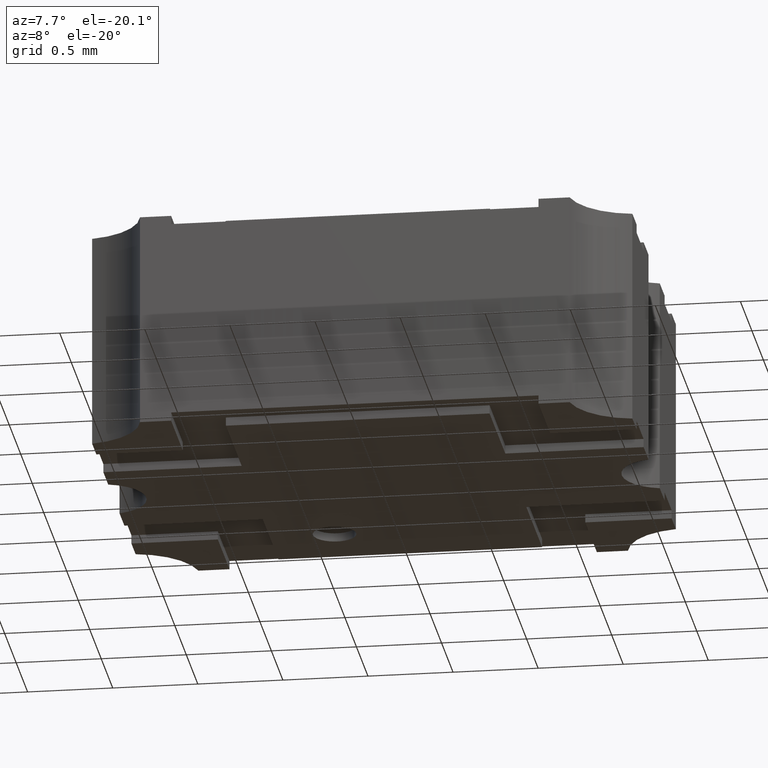
[diagram: clean part render]
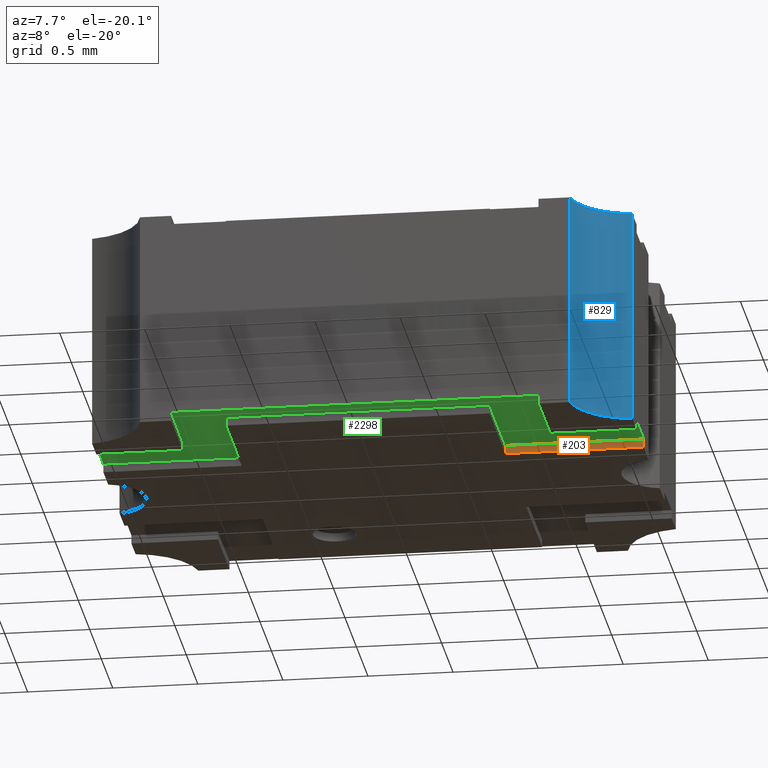
[diagram: same view with three faces highlighted in distinct colors, each labeled with its STEP entity id]
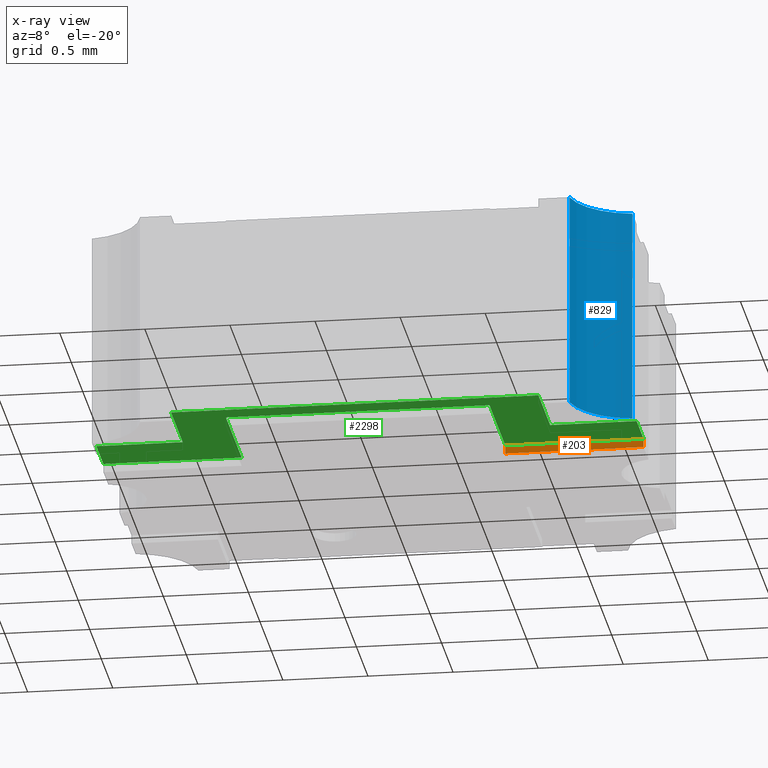
[diagram: x-ray of the same camera — body ghosted, the three highlighted faces saturated]
A machine part, auxiliary view with three faces highlighted in distinct colors.
The next image is the same camera in x-ray (body ghosted, the three faces saturated) — at least one of them is partly hidden behind the body in this view.
Their STEP definitions:

[orange] entity #203 — the highlighted planar face has unit normal (0.0001, -1, 0).
#30 = LINE ( 'NONE', #781, #1352 ) ;
#44 = EDGE_CURVE ( 'NONE', #238, #1852, #434, .T. ) ;
#50 = CARTESIAN_POINT ( 'NONE',  ( 0.03049999995082541826, -0.01799419436171988823, 0.002000000000000000042 ) ) ;
#197 = DIRECTION ( 'NONE',  ( 0.000000000000000000, 0.000000000000000000, -1.000000000000000000 ) ) ;
#203 = ADVANCED_FACE ( 'NONE', ( #358 ), #2021, .T. ) ;
#238 = VERTEX_POINT ( 'NONE', #958 ) ;
#263 = CARTESIAN_POINT ( 'NONE',  ( 0.03049999995082541826, -0.01799419436171988823, 0.002000000000000000042 ) ) ;
#281 = AXIS2_PLACEMENT_3D ( 'NONE', #2436, #2066, #742 ) ;
#336 = VERTEX_POINT ( 'NONE', #1307 ) ;
#341 = ORIENTED_EDGE ( 'NONE', *, *, #783, .F. ) ;
#358 = FACE_OUTER_BOUND ( 'NONE', #1867, .T. ) ;
#363 = ORIENTED_EDGE ( 'NONE', *, *, #2068, .T. ) ;
#434 = LINE ( 'NONE', #50, #560 ) ;
#560 = VECTOR ( 'NONE', #971, 39.37007874015748854 ) ;
#733 = LINE ( 'NONE', #937, #1522 ) ;
#742 = DIRECTION ( 'NONE',  ( 0.9999999972869166864, 7.366251766461968042E-05, 0.000000000000000000 ) ) ;
#768 = DIRECTION ( 'NONE',  ( -0.9999999972869166864, -7.366251766461968042E-05, -0.000000000000000000 ) ) ;
#779 = VECTOR ( 'NONE', #197, 39.37007874015748143 ) ;
#781 = CARTESIAN_POINT ( 'NONE',  ( 0.03049999995082541826, -0.01799419436171988823, 0.000000000000000000 ) ) ;
#783 = EDGE_CURVE ( 'NONE', #1264, #336, #30, .T. ) ;
#895 = ORIENTED_EDGE ( 'NONE', *, *, #44, .T. ) ;
#937 = CARTESIAN_POINT ( 'NONE',  ( 0.03049999995082541826, -0.01799419436171988823, 0.002000000000000000042 ) ) ;
#958 = CARTESIAN_POINT ( 'NONE',  ( 0.06249999990211729806, -0.01799183716115181422, 0.002000000000000000042 ) ) ;
#971 = DIRECTION ( 'NONE',  ( -0.9999999972869166864, -7.366251766461968042E-05, -0.000000000000000000 ) ) ;
#992 = EDGE_CURVE ( 'NONE', #238, #1264, #2114, .T. ) ;
#1103 = ORIENTED_EDGE ( 'NONE', *, *, #992, .F. ) ;
#1264 = VERTEX_POINT ( 'NONE', #1442 ) ;
#1307 = CARTESIAN_POINT ( 'NONE',  ( 0.03049999995082541826, -0.01799419436171988823, 0.000000000000000000 ) ) ;
#1317 = DIRECTION ( 'NONE',  ( 0.000000000000000000, 0.000000000000000000, -1.000000000000000000 ) ) ;
#1331 = CARTESIAN_POINT ( 'NONE',  ( 0.06249999990211729806, -0.01799183716115181422, 0.002000000000000000042 ) ) ;
#1352 = VECTOR ( 'NONE', #768, 39.37007874015748854 ) ;
#1442 = CARTESIAN_POINT ( 'NONE',  ( 0.06249999990211729806, -0.01799183716115181422, 0.000000000000000000 ) ) ;
#1522 = VECTOR ( 'NONE', #1317, 39.37007874015748143 ) ;
#1852 = VERTEX_POINT ( 'NONE', #263 ) ;
#1867 = EDGE_LOOP ( 'NONE', ( #341, #1103, #895, #363 ) ) ;
#2021 = PLANE ( 'NONE',  #281 ) ;
#2066 = DIRECTION ( 'NONE',  ( 7.366251766461969397E-05, -0.9999999972869167975, 0.000000000000000000 ) ) ;
#2068 = EDGE_CURVE ( 'NONE', #1852, #336, #733, .T. ) ;
#2114 = LINE ( 'NONE', #1331, #779 ) ;
#2436 = CARTESIAN_POINT ( 'NONE',  ( 0.03049999995082541826, -0.01799419436171988823, 0.002000000000000000042 ) ) ;

[blue] entity #829 — the highlighted cylindrical surface (partial cylindrical patch) has radius 0.3937 mm, axis along (-0, -0, -1).
#6 = DIRECTION ( 'NONE',  ( -0.000000000000000000, -0.000000000000000000, -1.000000000000000000 ) ) ;
#46 = EDGE_CURVE ( 'NONE', #901, #578, #1184, .T. ) ;
#119 = VECTOR ( 'NONE', #443, 39.37007874015748143 ) ;
#226 = CARTESIAN_POINT ( 'NONE',  ( 0.04970294146126963408, -0.04999999999976122156, 0.04999999999999999584 ) ) ;
#262 = CYLINDRICAL_SURFACE ( 'NONE', #542, 0.01550000000000002938 ) ;
#268 = VERTEX_POINT ( 'NONE', #1164 ) ;
#296 = DIRECTION ( 'NONE',  ( -0.000000000000000000, -0.000000000000000000, -1.000000000000000000 ) ) ;
#303 = CIRCLE ( 'NONE', #390, 0.01550000000000002938 ) ;
#390 = AXIS2_PLACEMENT_3D ( 'NONE', #1406, #296, #1007 ) ;
#414 = CARTESIAN_POINT ( 'NONE',  ( 0.06250000000204802841, -0.03720294145898288274, 0.002000000000000000042 ) ) ;
#443 = DIRECTION ( 'NONE',  ( -0.000000000000000000, -0.000000000000000000, -1.000000000000000000 ) ) ;
#499 = AXIS2_PLACEMENT_3D ( 'NONE', #778, #1537, #961 ) ;
#542 = AXIS2_PLACEMENT_3D ( 'NONE', #815, #2152, #1193 ) ;
#578 = VERTEX_POINT ( 'NONE', #1816 ) ;
#630 = CARTESIAN_POINT ( 'NONE',  ( 0.04970294146126963408, -0.04999999999976122156, 0.002000000000000000042 ) ) ;
#715 = ORIENTED_EDGE ( 'NONE', *, *, #1059, .T. ) ;
#717 = FACE_OUTER_BOUND ( 'NONE', #1236, .T. ) ;
#756 = VERTEX_POINT ( 'NONE', #950 ) ;
#778 = CARTESIAN_POINT ( 'NONE',  ( 0.06500000000204800288, -0.05249999999976126541, 0.04999999999999999584 ) ) ;
#815 = CARTESIAN_POINT ( 'NONE',  ( 0.06500000000204800288, -0.05249999999976126541, 0.002000000000000000042 ) ) ;
#829 = ADVANCED_FACE ( 'NONE', ( #717 ), #262, .F. ) ;
#879 = ORIENTED_EDGE ( 'NONE', *, *, #1315, .T. ) ;
#901 = VERTEX_POINT ( 'NONE', #226 ) ;
#950 = CARTESIAN_POINT ( 'NONE',  ( 0.06250000000204802841, -0.03720294145898288274, 0.000000000000000000 ) ) ;
#961 = DIRECTION ( 'NONE',  ( 1.000000000000000000, 0.000000000000000000, 0.000000000000000000 ) ) ;
#1007 = DIRECTION ( 'NONE',  ( 1.000000000000000000, 0.000000000000000000, 0.000000000000000000 ) ) ;
#1059 = EDGE_CURVE ( 'NONE', #578, #756, #303, .T. ) ;
#1164 = CARTESIAN_POINT ( 'NONE',  ( 0.06250000000204802841, -0.03720294145898288274, 0.04999999999999999584 ) ) ;
#1184 = LINE ( 'NONE', #630, #119 ) ;
#1193 = DIRECTION ( 'NONE',  ( -1.000000000000000000, 0.000000000000000000, 0.000000000000000000 ) ) ;
#1236 = EDGE_LOOP ( 'NONE', ( #715, #1509, #879, #2324 ) ) ;
#1315 = EDGE_CURVE ( 'NONE', #268, #901, #1570, .T. ) ;
#1401 = EDGE_CURVE ( 'NONE', #268, #756, #1696, .T. ) ;
#1406 = CARTESIAN_POINT ( 'NONE',  ( 0.06500000000204800288, -0.05249999999976126541, 0.000000000000000000 ) ) ;
#1509 = ORIENTED_EDGE ( 'NONE', *, *, #1401, .F. ) ;
#1537 = DIRECTION ( 'NONE',  ( 0.000000000000000000, 0.000000000000000000, 1.000000000000000000 ) ) ;
#1570 = CIRCLE ( 'NONE', #499, 0.01550000000000002938 ) ;
#1696 = LINE ( 'NONE', #414, #1965 ) ;
#1816 = CARTESIAN_POINT ( 'NONE',  ( 0.04970294146126963408, -0.04999999999976122156, 0.000000000000000000 ) ) ;
#1965 = VECTOR ( 'NONE', #6, 39.37007874015748143 ) ;
#2152 = DIRECTION ( 'NONE',  ( -0.000000000000000000, -0.000000000000000000, -1.000000000000000000 ) ) ;
#2324 = ORIENTED_EDGE ( 'NONE', *, *, #46, .T. ) ;

[green] entity #2298 — the highlighted planar face has unit normal (0, 0, -1).
#44 = EDGE_CURVE ( 'NONE', #238, #1852, #434, .T. ) ;
#50 = CARTESIAN_POINT ( 'NONE',  ( 0.03049999995082541826, -0.01799419436171988823, 0.002000000000000000042 ) ) ;
#56 = DIRECTION ( 'NONE',  ( 0.000000000000000000, 0.000000000000000000, -1.000000000000000000 ) ) ;
#88 = VERTEX_POINT ( 'NONE', #1256 ) ;
#108 = LINE ( 'NONE', #849, #842 ) ;
#131 = ORIENTED_EDGE ( 'NONE', *, *, #2203, .F. ) ;
#144 = VERTEX_POINT ( 'NONE', #2421 ) ;
#152 = VECTOR ( 'NONE', #836, 39.37007874015748143 ) ;
#215 = VERTEX_POINT ( 'NONE', #2253 ) ;
#228 = ORIENTED_EDGE ( 'NONE', *, *, #1705, .F. ) ;
#238 = VERTEX_POINT ( 'NONE', #958 ) ;
#255 = EDGE_CURVE ( 'NONE', #1852, #1316, #2119, .T. ) ;
#263 = CARTESIAN_POINT ( 'NONE',  ( 0.03049999995082541826, -0.01799419436171988823, 0.002000000000000000042 ) ) ;
#282 = CARTESIAN_POINT ( 'NONE',  ( -0.03050000004466257505, -0.04499419436170671444, 0.002000000000000000042 ) ) ;
#320 = DIRECTION ( 'NONE',  ( -1.000000000000000000, -0.000000000000000000, -0.000000000000000000 ) ) ;
#430 = FACE_OUTER_BOUND ( 'NONE', #1671, .T. ) ;
#432 = DIRECTION ( 'NONE',  ( -0.000000000000000000, 1.000000000000000000, -0.000000000000000000 ) ) ;
#434 = LINE ( 'NONE', #50, #560 ) ;
#439 = VECTOR ( 'NONE', #776, 39.37007874015748143 ) ;
#440 = LINE ( 'NONE', #1191, #2272 ) ;
#462 = CARTESIAN_POINT ( 'NONE',  ( 0.04249999990540798134, -0.04999999998177342975, 0.002000000000000000042 ) ) ;
#480 = LINE ( 'NONE', #2159, #152 ) ;
#520 = CARTESIAN_POINT ( 'NONE',  ( -0.04249999999469766809, -0.02999419436172034992, 0.002000000000000000042 ) ) ;
#560 = VECTOR ( 'NONE', #971, 39.37007874015748854 ) ;
#592 = EDGE_CURVE ( 'NONE', #1316, #1942, #705, .T. ) ;
#604 = ORIENTED_EDGE ( 'NONE', *, *, #1014, .F. ) ;
#619 = LINE ( 'NONE', #627, #1125 ) ;
#627 = CARTESIAN_POINT ( 'NONE',  ( 0.04249999990540798134, -0.04999999998177342975, 0.002000000000000000042 ) ) ;
#632 = DIRECTION ( 'NONE',  ( -0.000000000000000000, -1.000000000000000000, -0.000000000000000000 ) ) ;
#644 = ORIENTED_EDGE ( 'NONE', *, *, #1073, .F. ) ;
#682 = VECTOR ( 'NONE', #723, 39.37007874015748143 ) ;
#703 = AXIS2_PLACEMENT_3D ( 'NONE', #1749, #56, #802 ) ;
#705 = LINE ( 'NONE', #2000, #1106 ) ;
#713 = CARTESIAN_POINT ( 'NONE',  ( -0.06250000000204736228, -0.01799200798786280975, 0.002000000000000000042 ) ) ;
#723 = DIRECTION ( 'NONE',  ( 1.000000000000000000, 2.134256245401363435E-16, 0.000000000000000000 ) ) ;
#731 = VERTEX_POINT ( 'NONE', #2294 ) ;
#732 = LINE ( 'NONE', #520, #1744 ) ;
#766 = CARTESIAN_POINT ( 'NONE',  ( 0.03049999995082541826, -0.04499419436170671444, 0.002000000000000000042 ) ) ;
#776 = DIRECTION ( 'NONE',  ( -0.000000000000000000, -1.000000000000000000, -0.000000000000000000 ) ) ;
#802 = DIRECTION ( 'NONE',  ( -1.000000000000000000, 0.000000000000000000, -0.000000000000000000 ) ) ;
#804 = VECTOR ( 'NONE', #432, 39.37007874015748143 ) ;
#817 = EDGE_CURVE ( 'NONE', #88, #215, #732, .T. ) ;
#833 = CARTESIAN_POINT ( 'NONE',  ( -0.06250000000204736228, -0.02999419436172034992, 0.002000000000000000042 ) ) ;
#836 = DIRECTION ( 'NONE',  ( 1.000000000000000000, 2.008711762407946178E-16, -0.000000000000000000 ) ) ;
#842 = VECTOR ( 'NONE', #2327, 39.37007874015748143 ) ;
#849 = CARTESIAN_POINT ( 'NONE',  ( 0.06249999990211729806, -0.01799183716115181422, 0.002000000000000000042 ) ) ;
#958 = CARTESIAN_POINT ( 'NONE',  ( 0.06249999990211729806, -0.01799183716115181422, 0.002000000000000000042 ) ) ;
#971 = DIRECTION ( 'NONE',  ( -0.9999999972869166864, -7.366251766461968042E-05, -0.000000000000000000 ) ) ;
#1014 = EDGE_CURVE ( 'NONE', #215, #2007, #480, .T. ) ;
#1015 = LINE ( 'NONE', #833, #1641 ) ;
#1073 = EDGE_CURVE ( 'NONE', #1290, #238, #108, .T. ) ;
#1106 = VECTOR ( 'NONE', #320, 39.37007874015748143 ) ;
#1125 = VECTOR ( 'NONE', #1374, 39.37007874015748143 ) ;
#1180 = PLANE ( 'NONE',  #703 ) ;
#1191 = CARTESIAN_POINT ( 'NONE',  ( -0.06250000000204736228, -0.02999419436172034992, 0.002000000000000000042 ) ) ;
#1215 = EDGE_CURVE ( 'NONE', #144, #2124, #1471, .T. ) ;
#1256 = CARTESIAN_POINT ( 'NONE',  ( -0.04249999999469766809, -0.02999419436172034992, 0.002000000000000000042 ) ) ;
#1265 = ORIENTED_EDGE ( 'NONE', *, *, #44, .F. ) ;
#1270 = CARTESIAN_POINT ( 'NONE',  ( 0.06249999990211729806, -0.02999422734346567088, 0.002000000000000000042 ) ) ;
#1273 = DIRECTION ( 'NONE',  ( 0.000000000000000000, -1.000000000000000000, 0.000000000000000000 ) ) ;
#1290 = VERTEX_POINT ( 'NONE', #1270 ) ;
#1310 = CARTESIAN_POINT ( 'NONE',  ( -0.03050000004466257505, -0.01799419436171990558, 0.002000000000000000042 ) ) ;
#1316 = VERTEX_POINT ( 'NONE', #766 ) ;
#1374 = DIRECTION ( 'NONE',  ( 0.000000000000000000, 1.000000000000000000, 0.000000000000000000 ) ) ;
#1466 = VERTEX_POINT ( 'NONE', #1963 ) ;
#1471 = LINE ( 'NONE', #713, #1691 ) ;
#1474 = EDGE_CURVE ( 'NONE', #2124, #731, #1015, .T. ) ;
#1488 = ORIENTED_EDGE ( 'NONE', *, *, #817, .F. ) ;
#1519 = ORIENTED_EDGE ( 'NONE', *, *, #1789, .F. ) ;
#1624 = LINE ( 'NONE', #2198, #682 ) ;
#1641 = VECTOR ( 'NONE', #632, 39.37007874015748143 ) ;
#1671 = EDGE_LOOP ( 'NONE', ( #2430, #2004, #1519, #2365, #2415, #1265, #644, #228, #1893, #604, #1488, #131 ) ) ;
#1691 = VECTOR ( 'NONE', #2225, 39.37007874015748143 ) ;
#1705 = EDGE_CURVE ( 'NONE', #1466, #1290, #1624, .T. ) ;
#1715 = DIRECTION ( 'NONE',  ( 1.000000000000000000, 0.000000000000000000, 0.000000000000000000 ) ) ;
#1719 = CARTESIAN_POINT ( 'NONE',  ( 0.03049999995082541826, -0.04499419436170671444, 0.002000000000000000042 ) ) ;
#1744 = VECTOR ( 'NONE', #1273, 39.37007874015748143 ) ;
#1749 = CARTESIAN_POINT ( 'NONE',  ( 0.000000000000000000, 0.000000000000000000, 0.002000000000000000042 ) ) ;
#1765 = EDGE_CURVE ( 'NONE', #2007, #1466, #619, .T. ) ;
#1789 = EDGE_CURVE ( 'NONE', #1942, #144, #2263, .T. ) ;
#1852 = VERTEX_POINT ( 'NONE', #263 ) ;
#1893 = ORIENTED_EDGE ( 'NONE', *, *, #1765, .F. ) ;
#1942 = VERTEX_POINT ( 'NONE', #282 ) ;
#1963 = CARTESIAN_POINT ( 'NONE',  ( 0.04249999990540798134, -0.02999422734346567782, 0.002000000000000000042 ) ) ;
#2000 = CARTESIAN_POINT ( 'NONE',  ( -0.03050000004466257505, -0.04499419436170671444, 0.002000000000000000042 ) ) ;
#2004 = ORIENTED_EDGE ( 'NONE', *, *, #1215, .F. ) ;
#2007 = VERTEX_POINT ( 'NONE', #462 ) ;
#2119 = LINE ( 'NONE', #1719, #439 ) ;
#2124 = VERTEX_POINT ( 'NONE', #2413 ) ;
#2159 = CARTESIAN_POINT ( 'NONE',  ( 0.04249999990540798134, -0.04999999998177342975, 0.002000000000000000042 ) ) ;
#2198 = CARTESIAN_POINT ( 'NONE',  ( 0.04249999990540798134, -0.02999422734346567782, 0.002000000000000000042 ) ) ;
#2203 = EDGE_CURVE ( 'NONE', #731, #88, #440, .T. ) ;
#2225 = DIRECTION ( 'NONE',  ( -0.9999999976659029732, 6.832418296576390983E-05, -0.000000000000000000 ) ) ;
#2253 = CARTESIAN_POINT ( 'NONE',  ( -0.04249999999469766809, -0.04999999998177345056, 0.002000000000000000042 ) ) ;
#2263 = LINE ( 'NONE', #1310, #804 ) ;
#2272 = VECTOR ( 'NONE', #1715, 39.37007874015748143 ) ;
#2294 = CARTESIAN_POINT ( 'NONE',  ( -0.06250000000204736228, -0.02999419436172034992, 0.002000000000000000042 ) ) ;
#2298 = ADVANCED_FACE ( 'NONE', ( #430 ), #1180, .T. ) ;
#2327 = DIRECTION ( 'NONE',  ( -0.000000000000000000, 1.000000000000000000, -0.000000000000000000 ) ) ;
#2365 = ORIENTED_EDGE ( 'NONE', *, *, #592, .F. ) ;
#2413 = CARTESIAN_POINT ( 'NONE',  ( -0.06250000000204736228, -0.01799200798786280975, 0.002000000000000000042 ) ) ;
#2415 = ORIENTED_EDGE ( 'NONE', *, *, #255, .F. ) ;
#2421 = CARTESIAN_POINT ( 'NONE',  ( -0.03050000004466257505, -0.01799419436171990558, 0.002000000000000000042 ) ) ;
#2430 = ORIENTED_EDGE ( 'NONE', *, *, #1474, .F. ) ;